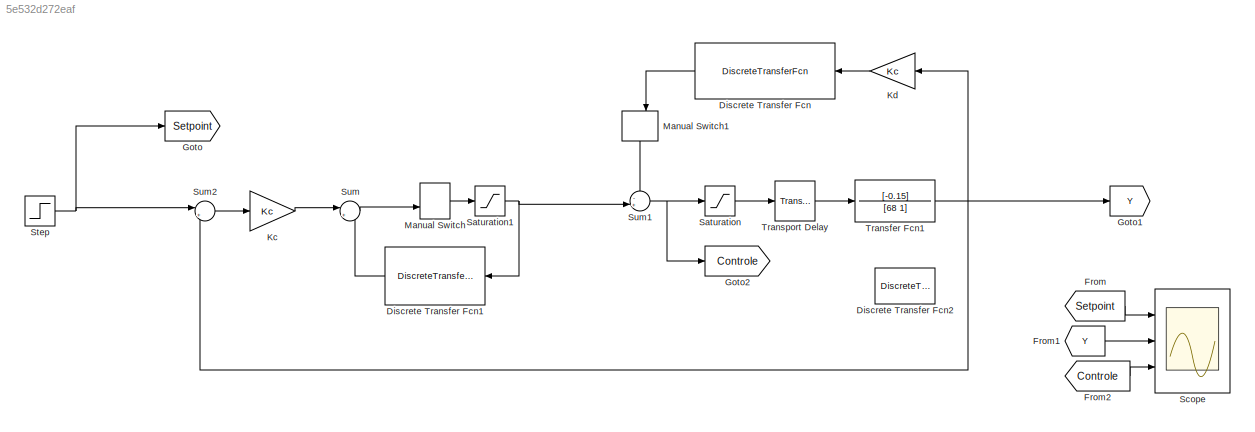
MODEL slx_5e532d272eaf
KIND model
CONFIG AbsTol = auto
CONFIG EnableMultiTasking = off
CONFIG FixedStep = auto
CONFIG MaxStep = auto
CONFIG MinStep = auto
CONFIG RelTol = 1e-3
CONFIG SampleTimeConstraint = Unconstrained
CONFIG Solver = VariableStepAuto
CONFIG SolverName = VariableStepAuto
CONFIG StartTime = 0.0
CONFIG StopTime = 10.0
BLOCK [DiscreteTransferFcn] Discrete Transfer Fcn
  Denominator = [(1+Td) -t]
  InputPortMap = u0
  Numerator = [Td -Td]
  Ports = [1, 1]
BLOCK [DiscreteTransferFcn] Discrete Transfer Fcn1
  Denominator = [(Ti + t) -Ti]
  InputPortMap = u0
  Numerator = [t 0]
  Ports = [1, 1]
BLOCK [DiscreteTransferFcn] Discrete Transfer Fcn2
  InputPortMap = u0
  Ports = [1, 1]
BLOCK [From] From
  GotoTag = Setpoint
BLOCK [From] From1
  GotoTag = Y
BLOCK [From] From2
  GotoTag = Controle
BLOCK [Goto] Goto
  GotoTag = Setpoint
BLOCK [Goto] Goto1
  GotoTag = Y
BLOCK [Goto] Goto2
  GotoTag = Controle
BLOCK [Gain] Kc
  Gain = Kc
  OutDataTypeStr = Inherit: Inherit via internal rule
  ParamDataTypeStr = Inherit: Inherit via internal rule
  SaturateOnIntegerOverflow = off
BLOCK [Gain] Kd
  Gain = Kc
  OutDataTypeStr = Inherit: Inherit via internal rule
  ParamDataTypeStr = Inherit: Inherit via internal rule
  SaturateOnIntegerOverflow = off
BLOCK [ManualSwitch] Manual Switch
  CurrentSetting = 0
BLOCK [ManualSwitch] Manual Switch1
  CurrentSetting = 0
BLOCK [Saturate] Saturation
  InputPortMap = u0
  LowerLimit = -23200
  Ports = [1, 1]
  UpperLimit = 10225
BLOCK [Saturate] Saturation1
  InputPortMap = u0
  LowerLimit = -23200
  Ports = [1, 1]
  UpperLimit = 10225
BLOCK [Scope] Scope
  Floating = off
  NumInputPorts = 3
  Ports = [3]
  ScopeSpecificationString = Simulink.scopes.TimeScopeBlockCfg('CurrentConfiguration', extmgr.ConfigurationSet(extmgr.Configuration('Core','General UI',true),extmgr.Configuration('Core','Source UI',true),extmgr.Configuration('Sources','WiredSimulink',true),extmgr.Configuration('Visuals','Time Domain',true,'SerializedDisplays',{struct('MinYLimReal','-21345.20532','MaxYLimReal','4593.92551','YLabelReal','','MinYLimMag','   0.00...<+1401ch>
BLOCK [Step] Step
  After = 2000
  SampleTime = 0
BLOCK [Sum] Sum
  IconShape = round
  InputSameDT = off
  Inputs = |++
  OutDataTypeStr = Inherit: Inherit via internal rule
  Ports = [2, 1]
  SaturateOnIntegerOverflow = off
BLOCK [Sum] Sum1
  IconShape = round
  InputSameDT = off
  Inputs = -+|
  OutDataTypeStr = Inherit: Inherit via internal rule
  Ports = [2, 1]
  SaturateOnIntegerOverflow = off
BLOCK [Sum] Sum2
  IconShape = round
  InputSameDT = off
  Inputs = |+-
  OutDataTypeStr = Inherit: Inherit via internal rule
  Ports = [2, 1]
  SaturateOnIntegerOverflow = off
BLOCK [TransferFcn] Transfer Fcn1
  Denominator = [68 1]
  Numerator = [-0.15]
BLOCK [TransportDelay] Transport Delay
  DelayTime = 19
  Ports = [1, 1]
LINE Discrete Transfer Fcn1:1 -> Sum:2
LINE Discrete Transfer Fcn:1 -> Manual Switch1:2
LINE From1:1 -> Scope:2
LINE From2:1 -> Scope:3
LINE From:1 -> Scope:1
LINE Kc:1 -> Sum:1
LINE Kd:1 -> Discrete Transfer Fcn:1
LINE Manual Switch1:1 -> Sum1:1
LINE Manual Switch:1 -> Saturation1:1
NET Saturation1:1 -> Discrete Transfer Fcn1:1, Sum1:2
LINE Saturation:1 -> Transport Delay:1
NET Step:1 -> Goto:1, Sum2:1
NET Sum1:1 -> Goto2:1, Saturation:1
LINE Sum2:1 -> Kc:1
LINE Sum:1 -> Manual Switch:2
NET Transfer Fcn1:1 -> Goto1:1, Kd:1, Sum2:2
LINE Transport Delay:1 -> Transfer Fcn1:1
note: NET lines group one-source signal fan-out (src -> all destinations, sorted); 1:1 wires keep LINE
